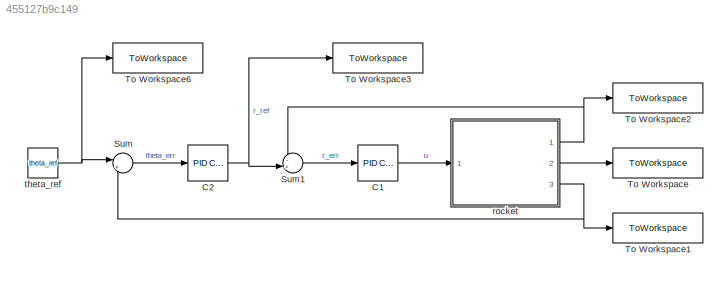
MODEL slx_455127b9c149
KIND model
CONFIG AbsTol = auto
CONFIG EnableMultiTasking = off
CONFIG FixedStep = .1
CONFIG InitFcn = init
CONFIG MaxStep = auto
CONFIG MinStep = auto
CONFIG RelTol = 1e-3
CONFIG SampleTimeConstraint = Unconstrained
CONFIG Solver = FixedStepAuto
CONFIG SolverName = FixedStepAuto
CONFIG StartTime = 0.0
CONFIG StopFcn = plot_results
CONFIG StopTime = 60
BLOCK [Reference] C1  REF=simulink/Continuous/PID Controller
  Ports = [1, 1]
  SourceBlock = simulink/Continuous/PID Controller
  SourceProductBaseCode = SL
  SourceType = PID 1dof
BLOCK [Reference] C2  REF=simulink/Continuous/PID Controller
  Ports = [1, 1]
  SourceBlock = simulink/Continuous/PID Controller
  SourceProductBaseCode = SL
  SourceType = PID 1dof
BLOCK [Sum] Sum
  Inputs = |+-
  Ports = [2, 1]
BLOCK [Sum] Sum1
  Inputs = -+|
  Ports = [2, 1]
BLOCK [ToWorkspace] To Workspace
  FixptAsFi = on
  MaxDataPoints = inf
  Ports = [1]
  SampleTime = -1
  SaveFormat = Timeseries
  VariableName = p
BLOCK [ToWorkspace] To Workspace1
  FixptAsFi = on
  MaxDataPoints = inf
  Ports = [1]
  SampleTime = -1
  SaveFormat = Timeseries
  VariableName = theta
BLOCK [ToWorkspace] To Workspace2
  FixptAsFi = on
  MaxDataPoints = inf
  Ports = [1]
  SampleTime = -1
  SaveFormat = Timeseries
  VariableName = r
BLOCK [ToWorkspace] To Workspace3
  FixptAsFi = on
  MaxDataPoints = inf
  Ports = [1]
  SampleTime = -1
  SaveFormat = Timeseries
  VariableName = r_ref
BLOCK [ToWorkspace] To Workspace6
  FixptAsFi = on
  MaxDataPoints = inf
  Ports = [1]
  SampleTime = -1
  SaveFormat = Timeseries
  VariableName = theta_ref
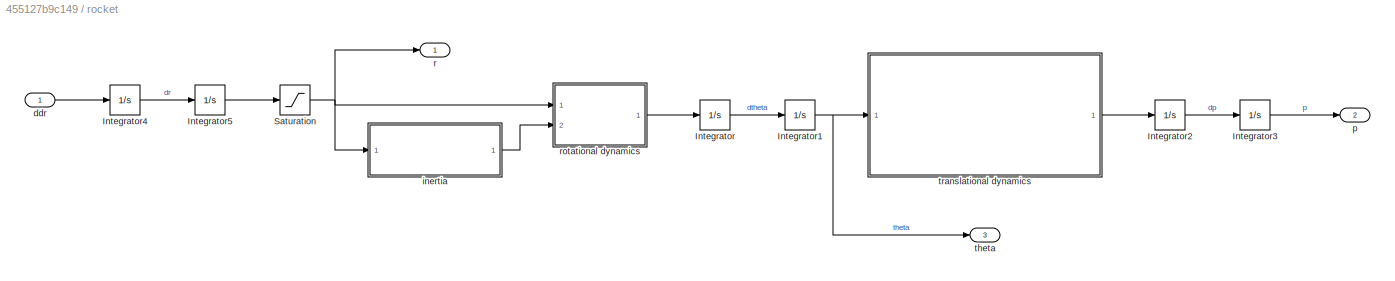
BLOCK [SubSystem] rocket
  Ports = [1, 3]
  RequestExecContextInheritance = off
BLOCK [Integrator] rocket/Integrator
  Ports = [1, 1]
BLOCK [Integrator] rocket/Integrator1
  Ports = [1, 1]
BLOCK [Integrator] rocket/Integrator2
  Ports = [1, 1]
BLOCK [Integrator] rocket/Integrator3
  Ports = [1, 1]
BLOCK [Integrator] rocket/Integrator4
  Ports = [1, 1]
BLOCK [Integrator] rocket/Integrator5
  Ports = [1, 1]
BLOCK [Saturate] rocket/Saturation
  LowerLimit = -1
  UpperLimit = 1
BLOCK [Inport] rocket/ddr
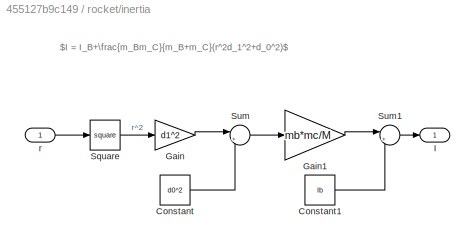
BLOCK [SubSystem] rocket/inertia
  Ports = [1, 1]
  RequestExecContextInheritance = off
BLOCK [Constant] rocket/inertia/Constant
  Value = d0^2
BLOCK [Constant] rocket/inertia/Constant1
  Value = Ib
BLOCK [Gain] rocket/inertia/Gain
  Gain = d1^2
BLOCK [Gain] rocket/inertia/Gain1
  Gain = mb*mc/M
BLOCK [Outport] rocket/inertia/I
BLOCK [Math] rocket/inertia/Square
  Operator = square
  Ports = [1, 1]
BLOCK [Sum] rocket/inertia/Sum
  Inputs = |++
  Ports = [2, 1]
BLOCK [Sum] rocket/inertia/Sum1
  Inputs = |++
  Ports = [2, 1]
BLOCK [Inport] rocket/inertia/r
BLOCK [Outport] rocket/p
  Port = 2
BLOCK [Outport] rocket/r
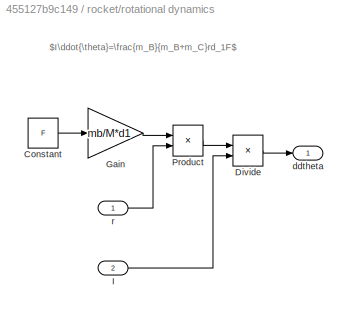
BLOCK [SubSystem] rocket/rotational dynamics
  Ports = [2, 1]
  RequestExecContextInheritance = off
BLOCK [Constant] rocket/rotational dynamics/Constant
  Value = F
BLOCK [Product] rocket/rotational dynamics/Divide
  Inputs = */
  Ports = [2, 1]
BLOCK [Gain] rocket/rotational dynamics/Gain
  Gain = mb/M*d1
BLOCK [Inport] rocket/rotational dynamics/I
  Port = 2
BLOCK [Product] rocket/rotational dynamics/Product
  Ports = [2, 1]
BLOCK [Outport] rocket/rotational dynamics/ddtheta
BLOCK [Inport] rocket/rotational dynamics/r
BLOCK [Outport] rocket/theta
  Port = 3
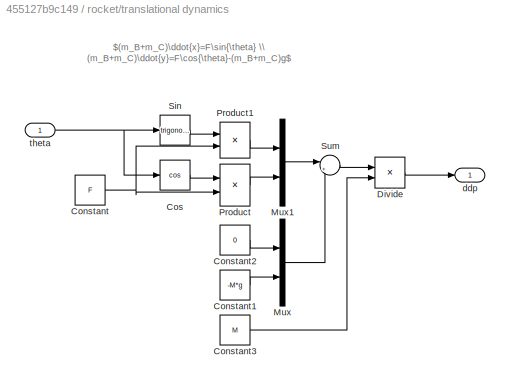
BLOCK [SubSystem] rocket/translational dynamics
  Ports = [1, 1]
  RequestExecContextInheritance = off
BLOCK [Constant] rocket/translational dynamics/Constant
  Value = F
BLOCK [Constant] rocket/translational dynamics/Constant1
  Value = -M*g
BLOCK [Constant] rocket/translational dynamics/Constant2
  Value = 0
BLOCK [Constant] rocket/translational dynamics/Constant3
  Value = M
BLOCK [Trigonometry] rocket/translational dynamics/Cos
  Operator = cos
  Ports = [1, 1]
BLOCK [Product] rocket/translational dynamics/Divide
  Inputs = */
  Ports = [2, 1]
BLOCK [Mux] rocket/translational dynamics/Mux
  DisplayOption = bar
  Inputs = 2
  Ports = [2, 1]
BLOCK [Mux] rocket/translational dynamics/Mux1
  DisplayOption = bar
  Inputs = 2
  Ports = [2, 1]
BLOCK [Product] rocket/translational dynamics/Product
  Ports = [2, 1]
BLOCK [Product] rocket/translational dynamics/Product1
  Ports = [2, 1]
BLOCK [Trigonometry] rocket/translational dynamics/Sin
  Ports = [1, 1]
BLOCK [Sum] rocket/translational dynamics/Sum
  Inputs = |++
  Ports = [2, 1]
BLOCK [Outport] rocket/translational dynamics/ddp
BLOCK [Inport] rocket/translational dynamics/theta
BLOCK [Constant] theta_ref
  Value = theta_ref
ANNOTATION rocket/inertia: $I = I_B+\frac{m_Bm_C}{m_B+m_C}(r^2d_1^2+d_0^2)$
ANNOTATION rocket/rotational dynamics: $I\ddot{\theta}=\frac{m_B}{m_B+m_C}rd_1F$
ANNOTATION rocket/translational dynamics: $(m_B+m_C)\ddot{x}=F\sin{\theta} \\ (m_B+m_C)\ddot{y}=F\cos{\theta}-(m_B+m_C)g$
LINE C1:1 -> rocket:1
NET C2:1 -> Sum1:2, To Workspace3:1
LINE Sum1:1 -> C1:1
LINE Sum:1 -> C2:1
NET rocket/Integrator1:1 -> rocket/theta:1, rocket/translational dynamics:1
LINE rocket/Integrator2:1 -> rocket/Integrator3:1
LINE rocket/Integrator3:1 -> rocket/p:1
LINE rocket/Integrator4:1 -> rocket/Integrator5:1
LINE rocket/Integrator5:1 -> rocket/Saturation:1
LINE rocket/Integrator:1 -> rocket/Integrator1:1
NET rocket/Saturation:1 -> rocket/inertia:1, rocket/r:1, rocket/rotational dynamics:1
LINE rocket/ddr:1 -> rocket/Integrator4:1
LINE rocket/inertia/Constant1:1 -> rocket/inertia/Sum1:2
LINE rocket/inertia/Constant:1 -> rocket/inertia/Sum:2
LINE rocket/inertia/Gain1:1 -> rocket/inertia/Sum1:1
LINE rocket/inertia/Gain:1 -> rocket/inertia/Sum:1
LINE rocket/inertia/Square:1 -> rocket/inertia/Gain:1
LINE rocket/inertia/Sum1:1 -> rocket/inertia/I:1
LINE rocket/inertia/Sum:1 -> rocket/inertia/Gain1:1
LINE rocket/inertia/r:1 -> rocket/inertia/Square:1
LINE rocket/inertia:1 -> rocket/rotational dynamics:2
LINE rocket/rotational dynamics/Constant:1 -> rocket/rotational dynamics/Gain:1
LINE rocket/rotational dynamics/Divide:1 -> rocket/rotational dynamics/ddtheta:1
LINE rocket/rotational dynamics/Gain:1 -> rocket/rotational dynamics/Product:1
LINE rocket/rotational dynamics/I:1 -> rocket/rotational dynamics/Divide:2
LINE rocket/rotational dynamics/Product:1 -> rocket/rotational dynamics/Divide:1
LINE rocket/rotational dynamics/r:1 -> rocket/rotational dynamics/Product:2
LINE rocket/rotational dynamics:1 -> rocket/Integrator:1
LINE rocket/translational dynamics/Constant1:1 -> rocket/translational dynamics/Mux:2
LINE rocket/translational dynamics/Constant2:1 -> rocket/translational dynamics/Mux:1
LINE rocket/translational dynamics/Constant3:1 -> rocket/translational dynamics/Divide:2
NET rocket/translational dynamics/Constant:1 -> rocket/translational dynamics/Product1:2, rocket/translational dynamics/Product:2
LINE rocket/translational dynamics/Cos:1 -> rocket/translational dynamics/Product:1
LINE rocket/translational dynamics/Divide:1 -> rocket/translational dynamics/ddp:1
LINE rocket/translational dynamics/Mux1:1 -> rocket/translational dynamics/Sum:1
LINE rocket/translational dynamics/Mux:1 -> rocket/translational dynamics/Sum:2
LINE rocket/translational dynamics/Product1:1 -> rocket/translational dynamics/Mux1:1
LINE rocket/translational dynamics/Product:1 -> rocket/translational dynamics/Mux1:2
LINE rocket/translational dynamics/Sin:1 -> rocket/translational dynamics/Product1:1
LINE rocket/translational dynamics/Sum:1 -> rocket/translational dynamics/Divide:1
NET rocket/translational dynamics/theta:1 -> rocket/translational dynamics/Cos:1, rocket/translational dynamics/Sin:1
LINE rocket/translational dynamics:1 -> rocket/Integrator2:1
NET rocket:1 -> Sum1:1, To Workspace2:1
LINE rocket:2 -> To Workspace:1
NET rocket:3 -> Sum:2, To Workspace1:1
NET theta_ref:1 -> Sum:1, To Workspace6:1
note: NET lines group one-source signal fan-out (src -> all destinations, sorted); 1:1 wires keep LINE
